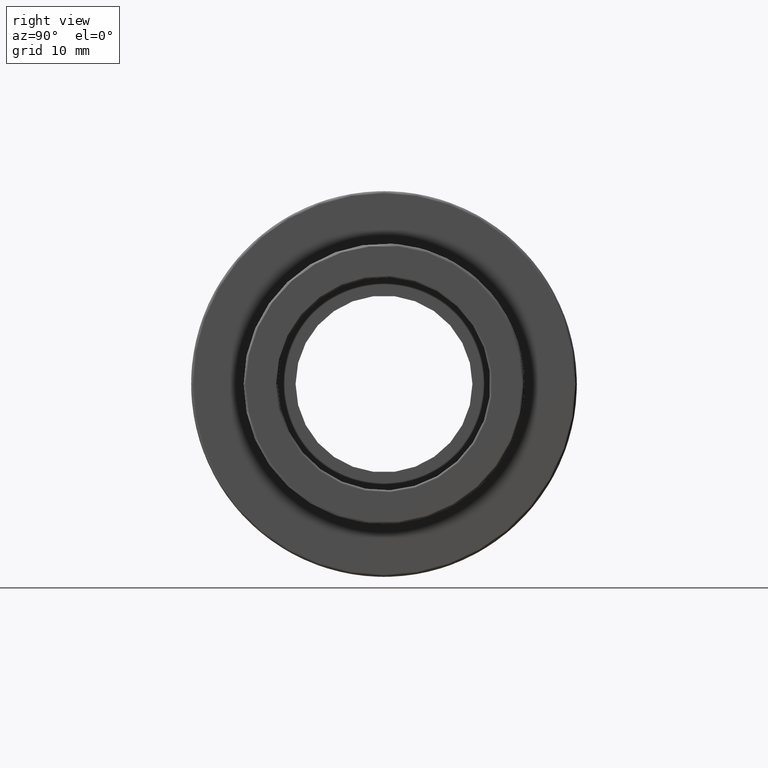
[diagram: clean part render]
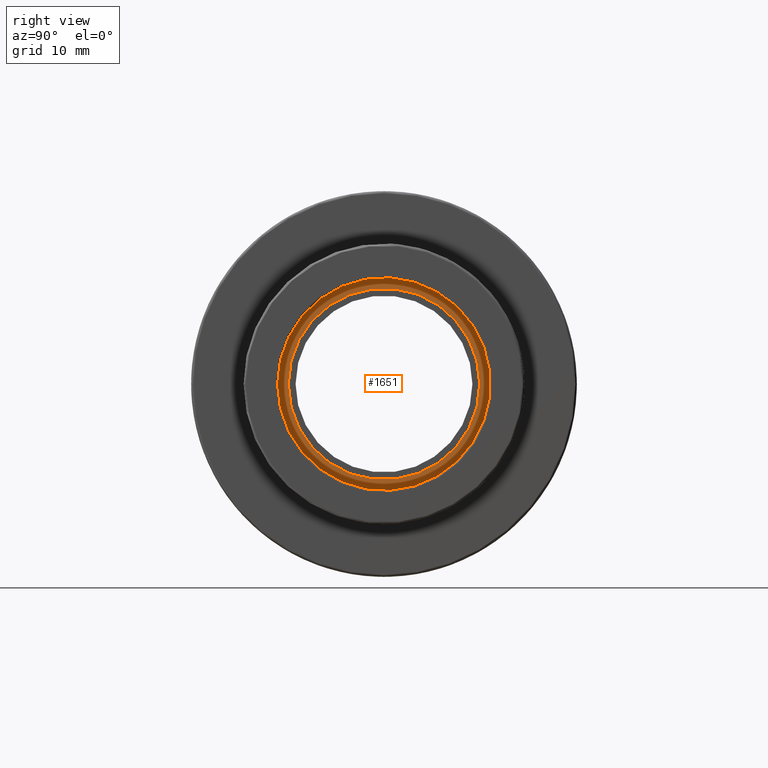
[diagram: same view with one face highlighted and labeled with its STEP entity id]
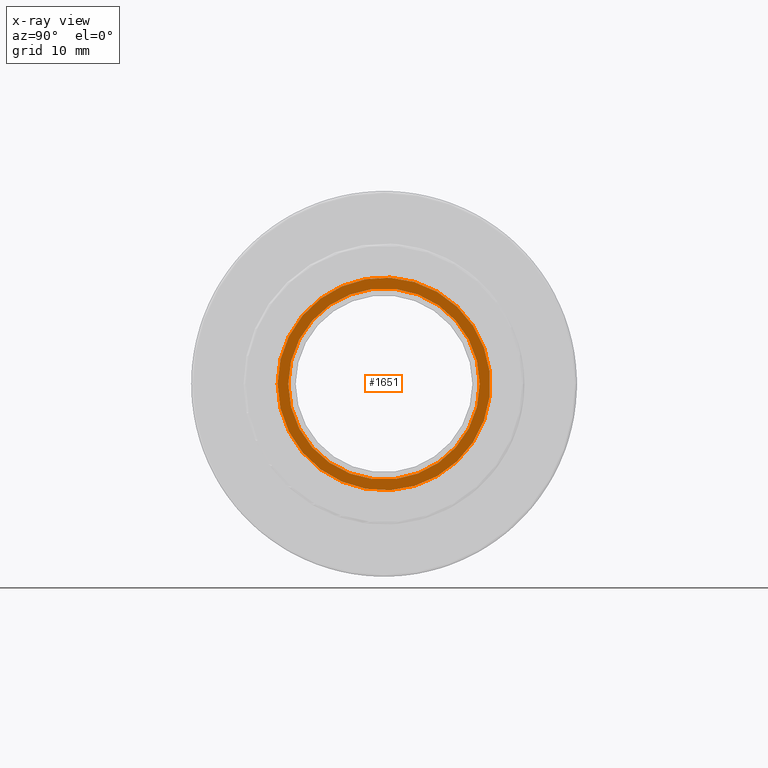
[diagram: x-ray of the same camera — body ghosted, the highlighted face saturated]
A machine part, right view. The second image highlights one B-rep face of the part: STEP entity #1651.
The next image is the same camera in x-ray: the body ghosted, the highlighted face saturated — about 0% of this face is hidden behind the body in this view.
In plain terms, the highlighted planar face has unit normal (1, 0, 0).
Its self-contained STEP definition (entity closure, byte-faithful):
#57=FACE_BOUND('',#354,.T.);
#136=CIRCLE('',#1798,16.);
#150=CIRCLE('',#1828,14.4);
#241=FACE_OUTER_BOUND('',#353,.T.);
#353=EDGE_LOOP('',(#1490));
#354=EDGE_LOOP('',(#1491));
#794=VERTEX_POINT('',#2764);
#808=VERTEX_POINT('',#2810);
#1022=EDGE_CURVE('',#794,#794,#136,.T.);
#1038=EDGE_CURVE('',#808,#808,#150,.T.);
#1490=ORIENTED_EDGE('',*,*,#1022,.F.);
#1491=ORIENTED_EDGE('',*,*,#1038,.T.);
#1559=PLANE('',#1829);
#1651=ADVANCED_FACE('',(#241,#57),#1559,.T.);
#1798=AXIS2_PLACEMENT_3D('',#2765,#2263,#2264);
#1828=AXIS2_PLACEMENT_3D('',#2811,#2325,#2326);
#1829=AXIS2_PLACEMENT_3D('',#2812,#2327,#2328);
#2263=DIRECTION('center_axis',(-1.,-4.89858719658941E-16,0.));
#2264=DIRECTION('ref_axis',(0.,0.,1.));
#2325=DIRECTION('center_axis',(-1.,-4.89858719658941E-16,0.));
#2326=DIRECTION('ref_axis',(0.,0.,1.));
#2327=DIRECTION('center_axis',(1.,4.89858719658941E-16,0.));
#2328=DIRECTION('ref_axis',(0.,0.,-1.));
#2764=CARTESIAN_POINT('',(14.65,-16.,0.));
#2765=CARTESIAN_POINT('Origin',(14.65,1.39089260213161E-14,0.));
#2810=CARTESIAN_POINT('',(14.65,-14.4,0.));
#2811=CARTESIAN_POINT('Origin',(14.65,1.39089260213161E-14,0.));
#2812=CARTESIAN_POINT('Origin',(14.65,-16.,0.));